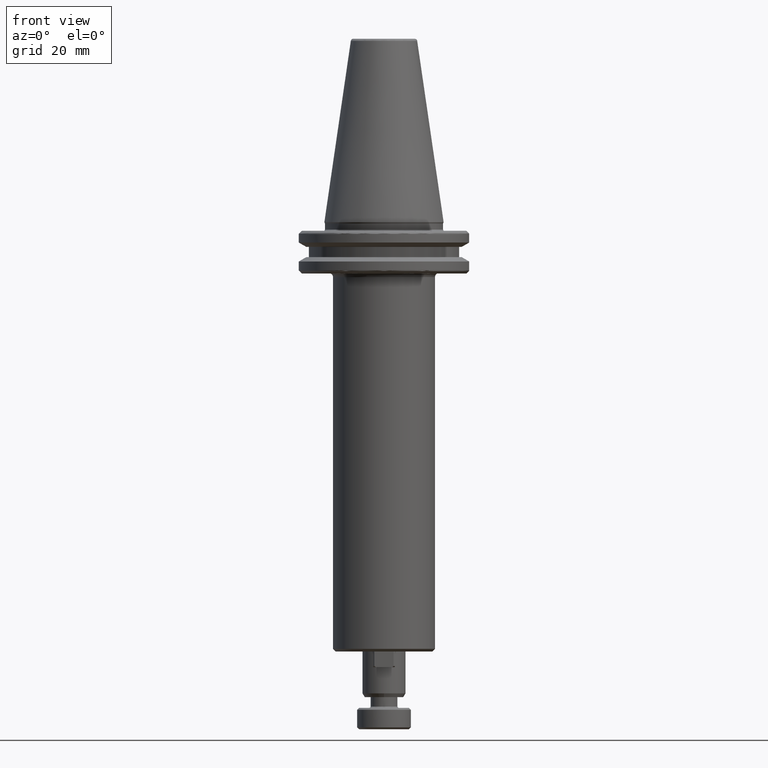
[diagram: clean part render]
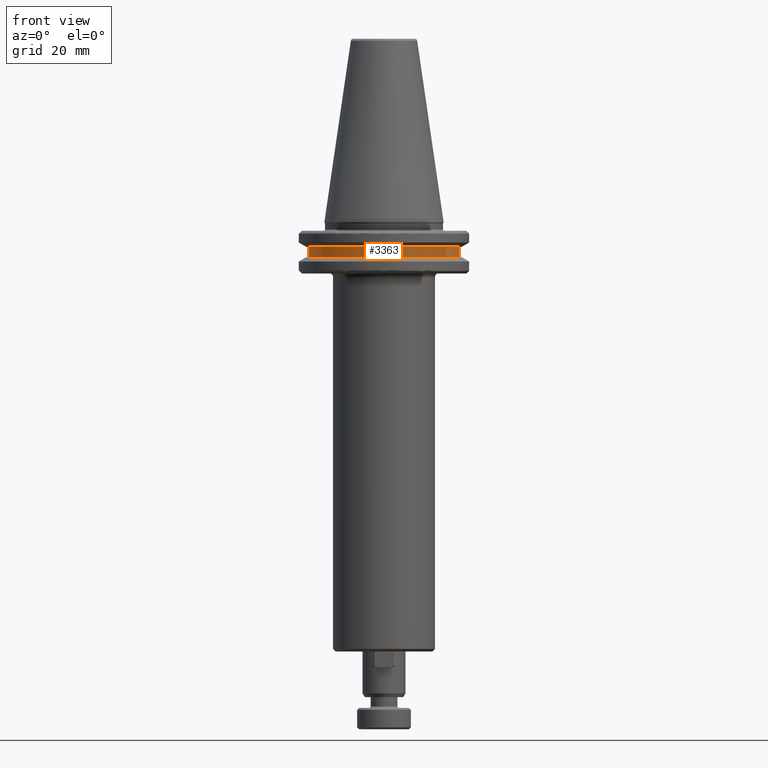
[diagram: same view with one face highlighted and labeled with its STEP entity id]
A machine part, front view. The second image highlights one B-rep face of the part: STEP entity #3363.
In plain terms, the highlighted cylindrical surface (partial cylindrical patch) has radius 28 mm, axis along (0, 0, 1).
Its self-contained STEP definition (entity closure, byte-faithful):
#53 = DIRECTION ( 'NONE',  ( 0.0000000000000000000, 0.0000000000000000000, 1.000000000000000000 ) ) ;
#309 = AXIS2_PLACEMENT_3D ( 'NONE', #1188, #3502, #1510 ) ;
#416 = DIRECTION ( 'NONE',  ( 1.000000000000000000, 0.0000000000000000000, 0.0000000000000000000 ) ) ;
#460 = CARTESIAN_POINT ( 'NONE',  ( -28.00000000000000000, 3.429011037612589300E-015, -13.00000000000001100 ) ) ;
#604 = CARTESIAN_POINT ( 'NONE',  ( 0.0000000000000000000, 0.0000000000000000000, -9.199999999999999300 ) ) ;
#703 = DIRECTION ( 'NONE',  ( 0.0000000000000000000, 0.0000000000000000000, 1.000000000000000000 ) ) ;
#866 = VECTOR ( 'NONE', #703, 1000.000000000000000 ) ;
#932 = DIRECTION ( 'NONE',  ( 1.000000000000000000, 0.0000000000000000000, 0.0000000000000000000 ) ) ;
#1130 = EDGE_LOOP ( 'NONE', ( #1519, #1839, #2810, #1162 ) ) ;
#1162 = ORIENTED_EDGE ( 'NONE', *, *, #3841, .T. ) ;
#1188 = CARTESIAN_POINT ( 'NONE',  ( 0.0000000000000000000, 0.0000000000000000000, -13.00000000000001100 ) ) ;
#1243 = DIRECTION ( 'NONE',  ( 0.0000000000000000000, 0.0000000000000000000, 1.000000000000000000 ) ) ;
#1391 = CARTESIAN_POINT ( 'NONE',  ( 0.0000000000000000000, 0.0000000000000000000, 113.5216080541959500 ) ) ;
#1474 = FACE_OUTER_BOUND ( 'NONE', #1130, .T. ) ;
#1502 = VERTEX_POINT ( 'NONE', #4072 ) ;
#1510 = DIRECTION ( 'NONE',  ( 1.000000000000000000, 0.0000000000000000000, 0.0000000000000000000 ) ) ;
#1519 = ORIENTED_EDGE ( 'NONE', *, *, #2167, .F. ) ;
#1557 = CIRCLE ( 'NONE', #309, 28.00000000000000000 ) ;
#1732 = LINE ( 'NONE', #2320, #866 ) ;
#1839 = ORIENTED_EDGE ( 'NONE', *, *, #3744, .T. ) ;
#1871 = CARTESIAN_POINT ( 'NONE',  ( 28.00000000000000000, 0.0000000000000000000, -9.199999999999999300 ) ) ;
#2076 = VERTEX_POINT ( 'NONE', #2621 ) ;
#2167 = EDGE_CURVE ( 'NONE', #3434, #2076, #4116, .T. ) ;
#2320 = CARTESIAN_POINT ( 'NONE',  ( 28.00000000000000000, 0.0000000000000000000, 113.5216080541959500 ) ) ;
#2468 = EDGE_CURVE ( 'NONE', #1502, #3242, #1732, .T. ) ;
#2495 = AXIS2_PLACEMENT_3D ( 'NONE', #604, #2904, #932 ) ;
#2621 = CARTESIAN_POINT ( 'NONE',  ( -28.00000000000000000, 3.429011037612589300E-015, -9.199999999999999300 ) ) ;
#2810 = ORIENTED_EDGE ( 'NONE', *, *, #2468, .T. ) ;
#2904 = DIRECTION ( 'NONE',  ( -0.0000000000000000000, -0.0000000000000000000, -1.000000000000000000 ) ) ;
#3012 = CIRCLE ( 'NONE', #2495, 28.00000000000000000 ) ;
#3038 = CYLINDRICAL_SURFACE ( 'NONE', #3129, 28.00000000000000000 ) ;
#3129 = AXIS2_PLACEMENT_3D ( 'NONE', #1391, #53, #416 ) ;
#3230 = CARTESIAN_POINT ( 'NONE',  ( -28.00000000000000000, 3.429011037612589300E-015, 113.5216080541959500 ) ) ;
#3242 = VERTEX_POINT ( 'NONE', #1871 ) ;
#3363 = ADVANCED_FACE ( 'NONE', ( #1474 ), #3038, .T. ) ;
#3434 = VERTEX_POINT ( 'NONE', #460 ) ;
#3502 = DIRECTION ( 'NONE',  ( 0.0000000000000000000, 0.0000000000000000000, 1.000000000000000000 ) ) ;
#3744 = EDGE_CURVE ( 'NONE', #3434, #1502, #1557, .T. ) ;
#3841 = EDGE_CURVE ( 'NONE', #3242, #2076, #3012, .T. ) ;
#4072 = CARTESIAN_POINT ( 'NONE',  ( 28.00000000000000000, 0.0000000000000000000, -13.00000000000001100 ) ) ;
#4116 = LINE ( 'NONE', #3230, #4221 ) ;
#4221 = VECTOR ( 'NONE', #1243, 1000.000000000000000 ) ;